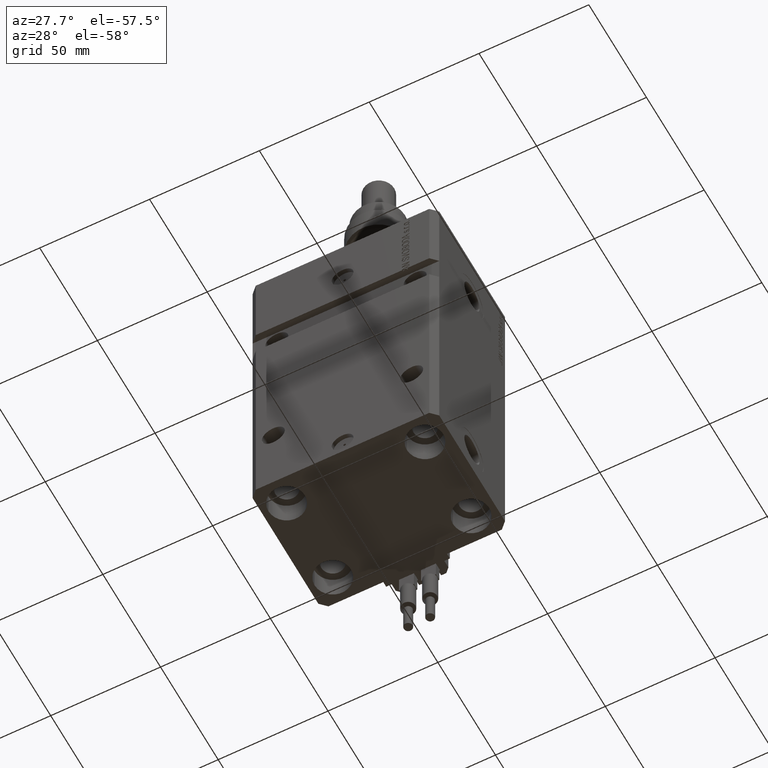
[diagram: clean part render]
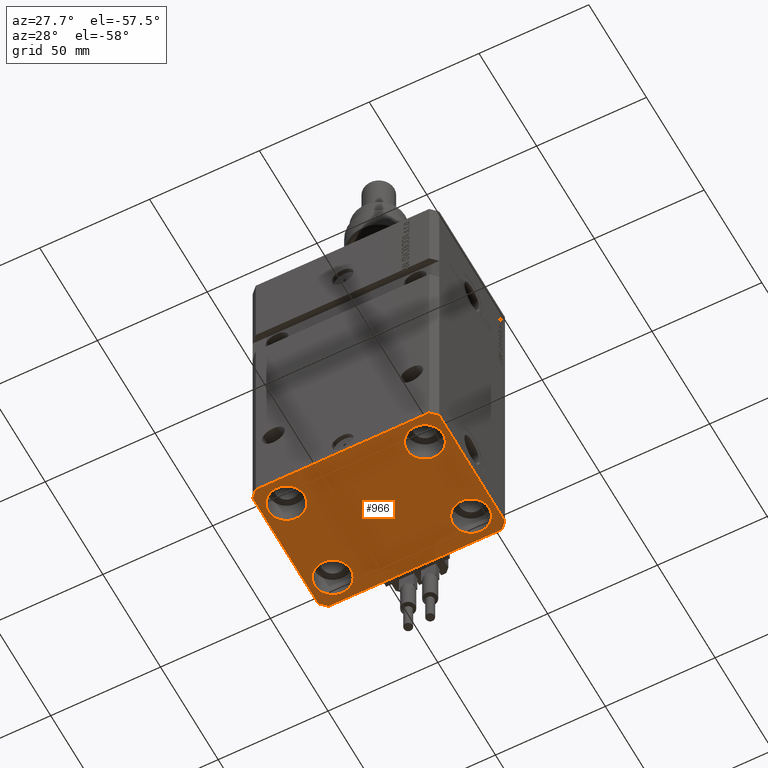
[diagram: same view with one face highlighted and labeled with its STEP entity id]
A machine part, auxiliary view. The second image highlights one B-rep face of the part: STEP entity #966.
In plain terms, the highlighted planar face has unit normal (0, 0, 1).
Its self-contained STEP definition (entity closure, byte-faithful):
#298 = EDGE_LOOP ( 'NONE', ( #48045, #33141 ) ) ;
#836 = EDGE_CURVE ( 'NONE', #40318, #44536, #3932, .T. ) ;
#946 = EDGE_CURVE ( 'NONE', #35672, #39631, #36204, .T. ) ;
#966 = ADVANCED_FACE ( 'NONE', ( #22293, #47558, #10379, #30484, #26516 ), #51535, .F. ) ;
#1204 = EDGE_CURVE ( 'NONE', #26306, #40499, #7492, .T. ) ;
#1911 = VECTOR ( 'NONE', #43976, 1000.000000000000000 ) ;
#2415 = DIRECTION ( 'NONE',  ( -0.7071067811865471286, -0.7071067811865479058, 0.000000000000000000 ) ) ;
#2788 = CARTESIAN_POINT ( 'NONE',  ( 31.50000000000000000, -20.00000000000000000, -153.0000000000000000 ) ) ;
#3044 = DIRECTION ( 'NONE',  ( -0.000000000000000000, -0.000000000000000000, 1.000000000000000000 ) ) ;
#3443 = DIRECTION ( 'NONE',  ( -0.000000000000000000, -0.000000000000000000, 1.000000000000000000 ) ) ;
#3563 = DIRECTION ( 'NONE',  ( 1.000000000000000000, 0.000000000000000000, 0.000000000000000000 ) ) ;
#3613 = DIRECTION ( 'NONE',  ( 1.000000000000000000, 0.000000000000000000, 0.000000000000000000 ) ) ;
#3831 = VECTOR ( 'NONE', #2415, 1000.000000000000000 ) ;
#3932 = LINE ( 'NONE', #15579, #20170 ) ;
#4089 = CARTESIAN_POINT ( 'NONE',  ( -31.50000000000000000, -20.00000000000000000, -153.0000000000000000 ) ) ;
#4839 = DIRECTION ( 'NONE',  ( 8.886653596232072440E-15, 1.000000000000000000, 0.000000000000000000 ) ) ;
#4991 = DIRECTION ( 'NONE',  ( 1.000000000000000000, 0.000000000000000000, 0.000000000000000000 ) ) ;
#5088 = DIRECTION ( 'NONE',  ( -0.000000000000000000, -0.000000000000000000, 1.000000000000000000 ) ) ;
#5155 = CIRCLE ( 'NONE', #34715, 8.249999999999992895 ) ;
#5239 = CARTESIAN_POINT ( 'NONE',  ( -23.25000000000000000, 20.00000000000000000, -153.0000000000000000 ) ) ;
#5646 = LINE ( 'NONE', #49275, #20179 ) ;
#5987 = CARTESIAN_POINT ( 'NONE',  ( 42.50000000000000711, -28.50000000000000355, -153.0000000000000000 ) ) ;
#5996 = CARTESIAN_POINT ( 'NONE',  ( -42.50000000000000000, -28.50000000000000000, -153.0000000000000000 ) ) ;
#6253 = LINE ( 'NONE', #5996, #43330 ) ;
#6391 = CARTESIAN_POINT ( 'NONE',  ( -39.50000000000000711, 31.50000000000000000, -153.0000000000000000 ) ) ;
#6422 = DIRECTION ( 'NONE',  ( 0.000000000000000000, 0.000000000000000000, 1.000000000000000000 ) ) ;
#6999 = CARTESIAN_POINT ( 'NONE',  ( 31.50000000000000000, 20.00000000000001066, -153.0000000000000000 ) ) ;
#7415 = CARTESIAN_POINT ( 'NONE',  ( -31.50000000000000000, 20.00000000000000000, -153.0000000000000000 ) ) ;
#7492 = CIRCLE ( 'NONE', #11718, 8.250000000000000000 ) ;
#7642 = DIRECTION ( 'NONE',  ( -0.000000000000000000, -0.000000000000000000, 1.000000000000000000 ) ) ;
#8576 = CARTESIAN_POINT ( 'NONE',  ( -42.50000000000000000, -28.50000000000000000, -153.0000000000000000 ) ) ;
#8994 = VERTEX_POINT ( 'NONE', #27407 ) ;
#9132 = CARTESIAN_POINT ( 'NONE',  ( 23.25000000000000355, 20.00000000000001066, -153.0000000000000000 ) ) ;
#10336 = AXIS2_PLACEMENT_3D ( 'NONE', #4089, #20214, #44810 ) ;
#10379 = FACE_BOUND ( 'NONE', #28148, .T. ) ;
#10514 = CIRCLE ( 'NONE', #40082, 8.249999999999992895 ) ;
#11151 = EDGE_CURVE ( 'NONE', #44536, #32357, #5646, .T. ) ;
#11171 = CARTESIAN_POINT ( 'NONE',  ( -39.75000000000000000, 20.00000000000000000, -153.0000000000000000 ) ) ;
#11290 = CARTESIAN_POINT ( 'NONE',  ( -31.50000000000000000, -20.00000000000000000, -153.0000000000000000 ) ) ;
#11718 = AXIS2_PLACEMENT_3D ( 'NONE', #11290, #27417, #3613 ) ;
#12705 = EDGE_CURVE ( 'NONE', #39631, #35672, #45541, .T. ) ;
#12866 = CARTESIAN_POINT ( 'NONE',  ( 39.74999999999999289, 20.00000000000001066, -153.0000000000000000 ) ) ;
#13652 = CARTESIAN_POINT ( 'NONE',  ( 42.50000000000051870, 28.49999999999995381, -153.0000000000000000 ) ) ;
#13776 = ORIENTED_EDGE ( 'NONE', *, *, #27263, .F. ) ;
#13936 = DIRECTION ( 'NONE',  ( 0.7071067811865471286, -0.7071067811865479058, 0.000000000000000000 ) ) ;
#13990 = VECTOR ( 'NONE', #4839, 1000.000000000000000 ) ;
#14392 = ORIENTED_EDGE ( 'NONE', *, *, #27769, .F. ) ;
#14828 = EDGE_CURVE ( 'NONE', #31199, #16467, #5155, .T. ) ;
#15112 = AXIS2_PLACEMENT_3D ( 'NONE', #38415, #6422, #31971 ) ;
#15415 = CARTESIAN_POINT ( 'NONE',  ( 39.50000000000000711, -31.50000000000000000, -153.0000000000000000 ) ) ;
#15579 = CARTESIAN_POINT ( 'NONE',  ( 42.50000000000051870, 28.49999999999995381, -153.0000000000000000 ) ) ;
#16467 = VERTEX_POINT ( 'NONE', #20791 ) ;
#17511 = DIRECTION ( 'NONE',  ( 1.000000000000000000, 0.000000000000000000, 0.000000000000000000 ) ) ;
#17566 = EDGE_CURVE ( 'NONE', #40499, #26306, #50866, .T. ) ;
#18187 = EDGE_LOOP ( 'NONE', ( #22522, #43073 ) ) ;
#18675 = CARTESIAN_POINT ( 'NONE',  ( -42.50000000000000000, 28.50000000000000000, -153.0000000000000000 ) ) ;
#18686 = EDGE_CURVE ( 'NONE', #8994, #32683, #52152, .T. ) ;
#18939 = CIRCLE ( 'NONE', #49343, 8.249999999999992895 ) ;
#19574 = DIRECTION ( 'NONE',  ( 1.000000000000000000, 0.000000000000000000, 0.000000000000000000 ) ) ;
#19714 = EDGE_CURVE ( 'NONE', #25891, #27811, #6253, .T. ) ;
#20170 = VECTOR ( 'NONE', #39643, 1000.000000000000114 ) ;
#20179 = VECTOR ( 'NONE', #20987, 1000.000000000000000 ) ;
#20193 = CARTESIAN_POINT ( 'NONE',  ( 42.50000000000000711, -28.50000000000000355, -153.0000000000000000 ) ) ;
#20214 = DIRECTION ( 'NONE',  ( -0.000000000000000000, -0.000000000000000000, 1.000000000000000000 ) ) ;
#20389 = ORIENTED_EDGE ( 'NONE', *, *, #48594, .F. ) ;
#20791 = CARTESIAN_POINT ( 'NONE',  ( 23.25000000000000355, -20.00000000000000000, -153.0000000000000000 ) ) ;
#20987 = DIRECTION ( 'NONE',  ( -1.000000000000000000, 0.000000000000000000, 0.000000000000000000 ) ) ;
#22274 = EDGE_LOOP ( 'NONE', ( #46057, #45826, #14392, #24031, #50992, #50316, #20389, #13776 ) ) ;
#22293 = FACE_BOUND ( 'NONE', #298, .T. ) ;
#22522 = ORIENTED_EDGE ( 'NONE', *, *, #12705, .T. ) ;
#22556 = DIRECTION ( 'NONE',  ( 1.000000000000000000, 0.000000000000000000, 0.000000000000000000 ) ) ;
#22611 = ORIENTED_EDGE ( 'NONE', *, *, #25187, .T. ) ;
#23134 = DIRECTION ( 'NONE',  ( 1.000000000000000000, 0.000000000000000000, 0.000000000000000000 ) ) ;
#23869 = CARTESIAN_POINT ( 'NONE',  ( -39.50000000000000711, 31.50000000000000000, -153.0000000000000000 ) ) ;
#24031 = ORIENTED_EDGE ( 'NONE', *, *, #18686, .F. ) ;
#25187 = EDGE_CURVE ( 'NONE', #30333, #36410, #18939, .T. ) ;
#25719 = EDGE_CURVE ( 'NONE', #16467, #31199, #10514, .T. ) ;
#25891 = VERTEX_POINT ( 'NONE', #8576 ) ;
#26306 = VERTEX_POINT ( 'NONE', #50277 ) ;
#26516 = FACE_OUTER_BOUND ( 'NONE', #22274, .T. ) ;
#27263 = EDGE_CURVE ( 'NONE', #32357, #37624, #38119, .T. ) ;
#27407 = CARTESIAN_POINT ( 'NONE',  ( 39.50000000000000711, -31.50000000000000000, -153.0000000000000000 ) ) ;
#27417 = DIRECTION ( 'NONE',  ( -0.000000000000000000, -0.000000000000000000, 1.000000000000000000 ) ) ;
#27465 = AXIS2_PLACEMENT_3D ( 'NONE', #6999, #39516, #23134 ) ;
#27769 = EDGE_CURVE ( 'NONE', #32683, #40318, #44783, .T. ) ;
#27789 = CARTESIAN_POINT ( 'NONE',  ( -42.50000000000000000, 28.50000000000000000, -153.0000000000000000 ) ) ;
#27811 = VERTEX_POINT ( 'NONE', #36314 ) ;
#28148 = EDGE_LOOP ( 'NONE', ( #22611, #38991 ) ) ;
#30333 = VERTEX_POINT ( 'NONE', #9132 ) ;
#30484 = FACE_BOUND ( 'NONE', #18187, .T. ) ;
#31199 = VERTEX_POINT ( 'NONE', #37557 ) ;
#31971 = DIRECTION ( 'NONE',  ( 1.000000000000000000, 0.000000000000000000, -0.000000000000000000 ) ) ;
#32357 = VERTEX_POINT ( 'NONE', #23869 ) ;
#32683 = VERTEX_POINT ( 'NONE', #5987 ) ;
#33141 = ORIENTED_EDGE ( 'NONE', *, *, #17566, .T. ) ;
#34715 = AXIS2_PLACEMENT_3D ( 'NONE', #45537, #5088, #17511 ) ;
#35672 = VERTEX_POINT ( 'NONE', #5239 ) ;
#36204 = CIRCLE ( 'NONE', #42113, 8.250000000000000000 ) ;
#36314 = CARTESIAN_POINT ( 'NONE',  ( -39.50000000000000711, -31.50000000000000000, -153.0000000000000000 ) ) ;
#36336 = CARTESIAN_POINT ( 'NONE',  ( -39.50000000000000711, -31.50000000000000000, -153.0000000000000000 ) ) ;
#36410 = VERTEX_POINT ( 'NONE', #12866 ) ;
#36732 = EDGE_CURVE ( 'NONE', #27811, #8994, #51953, .T. ) ;
#37116 = AXIS2_PLACEMENT_3D ( 'NONE', #7415, #3443, #19574 ) ;
#37557 = CARTESIAN_POINT ( 'NONE',  ( 39.74999999999999289, -20.00000000000000000, -153.0000000000000000 ) ) ;
#37624 = VERTEX_POINT ( 'NONE', #18675 ) ;
#38119 = LINE ( 'NONE', #6391, #3831 ) ;
#38415 = CARTESIAN_POINT ( 'NONE',  ( 0.000000000000000000, 0.000000000000000000, -153.0000000000000000 ) ) ;
#38991 = ORIENTED_EDGE ( 'NONE', *, *, #49185, .T. ) ;
#39252 = VECTOR ( 'NONE', #51857, 1000.000000000000000 ) ;
#39516 = DIRECTION ( 'NONE',  ( -0.000000000000000000, -0.000000000000000000, 1.000000000000000000 ) ) ;
#39631 = VERTEX_POINT ( 'NONE', #11171 ) ;
#39643 = DIRECTION ( 'NONE',  ( -0.7071067811865356934, 0.7071067811865594521, 0.000000000000000000 ) ) ;
#40082 = AXIS2_PLACEMENT_3D ( 'NONE', #2788, #3044, #47987 ) ;
#40318 = VERTEX_POINT ( 'NONE', #13652 ) ;
#40499 = VERTEX_POINT ( 'NONE', #47729 ) ;
#41234 = DIRECTION ( 'NONE',  ( -0.000000000000000000, -0.000000000000000000, 1.000000000000000000 ) ) ;
#42113 = AXIS2_PLACEMENT_3D ( 'NONE', #52057, #7642, #22556 ) ;
#43073 = ORIENTED_EDGE ( 'NONE', *, *, #946, .T. ) ;
#43308 = CARTESIAN_POINT ( 'NONE',  ( 39.50000000000056843, 31.50000000000000000, -153.0000000000000000 ) ) ;
#43330 = VECTOR ( 'NONE', #13936, 1000.000000000000000 ) ;
#43976 = DIRECTION ( 'NONE',  ( 0.7071067811865483499, 0.7071067811865466846, 0.000000000000000000 ) ) ;
#43988 = VECTOR ( 'NONE', #3563, 1000.000000000000000 ) ;
#44536 = VERTEX_POINT ( 'NONE', #43308 ) ;
#44714 = LINE ( 'NONE', #27789, #39252 ) ;
#44783 = LINE ( 'NONE', #20193, #13990 ) ;
#44810 = DIRECTION ( 'NONE',  ( 1.000000000000000000, 0.000000000000000000, 0.000000000000000000 ) ) ;
#45194 = CARTESIAN_POINT ( 'NONE',  ( 31.50000000000000000, 20.00000000000001066, -153.0000000000000000 ) ) ;
#45537 = CARTESIAN_POINT ( 'NONE',  ( 31.50000000000000000, -20.00000000000000000, -153.0000000000000000 ) ) ;
#45541 = CIRCLE ( 'NONE', #37116, 8.250000000000000000 ) ;
#45826 = ORIENTED_EDGE ( 'NONE', *, *, #836, .F. ) ;
#45885 = ORIENTED_EDGE ( 'NONE', *, *, #25719, .T. ) ;
#46039 = CIRCLE ( 'NONE', #27465, 8.249999999999992895 ) ;
#46057 = ORIENTED_EDGE ( 'NONE', *, *, #11151, .F. ) ;
#46778 = ORIENTED_EDGE ( 'NONE', *, *, #14828, .T. ) ;
#47558 = FACE_BOUND ( 'NONE', #52311, .T. ) ;
#47729 = CARTESIAN_POINT ( 'NONE',  ( -23.25000000000000000, -20.00000000000000000, -153.0000000000000000 ) ) ;
#47987 = DIRECTION ( 'NONE',  ( 1.000000000000000000, 0.000000000000000000, 0.000000000000000000 ) ) ;
#48045 = ORIENTED_EDGE ( 'NONE', *, *, #1204, .T. ) ;
#48594 = EDGE_CURVE ( 'NONE', #37624, #25891, #44714, .T. ) ;
#49185 = EDGE_CURVE ( 'NONE', #36410, #30333, #46039, .T. ) ;
#49275 = CARTESIAN_POINT ( 'NONE',  ( 39.50000000000056843, 31.50000000000000000, -153.0000000000000000 ) ) ;
#49343 = AXIS2_PLACEMENT_3D ( 'NONE', #45194, #41234, #4991 ) ;
#50277 = CARTESIAN_POINT ( 'NONE',  ( -39.75000000000000000, -20.00000000000000000, -153.0000000000000000 ) ) ;
#50316 = ORIENTED_EDGE ( 'NONE', *, *, #19714, .F. ) ;
#50866 = CIRCLE ( 'NONE', #10336, 8.250000000000000000 ) ;
#50992 = ORIENTED_EDGE ( 'NONE', *, *, #36732, .F. ) ;
#51535 = PLANE ( 'NONE',  #15112 ) ;
#51857 = DIRECTION ( 'NONE',  ( 0.000000000000000000, -1.000000000000000000, 0.000000000000000000 ) ) ;
#51953 = LINE ( 'NONE', #36336, #43988 ) ;
#52057 = CARTESIAN_POINT ( 'NONE',  ( -31.50000000000000000, 20.00000000000000000, -153.0000000000000000 ) ) ;
#52152 = LINE ( 'NONE', #15415, #1911 ) ;
#52311 = EDGE_LOOP ( 'NONE', ( #45885, #46778 ) ) ;